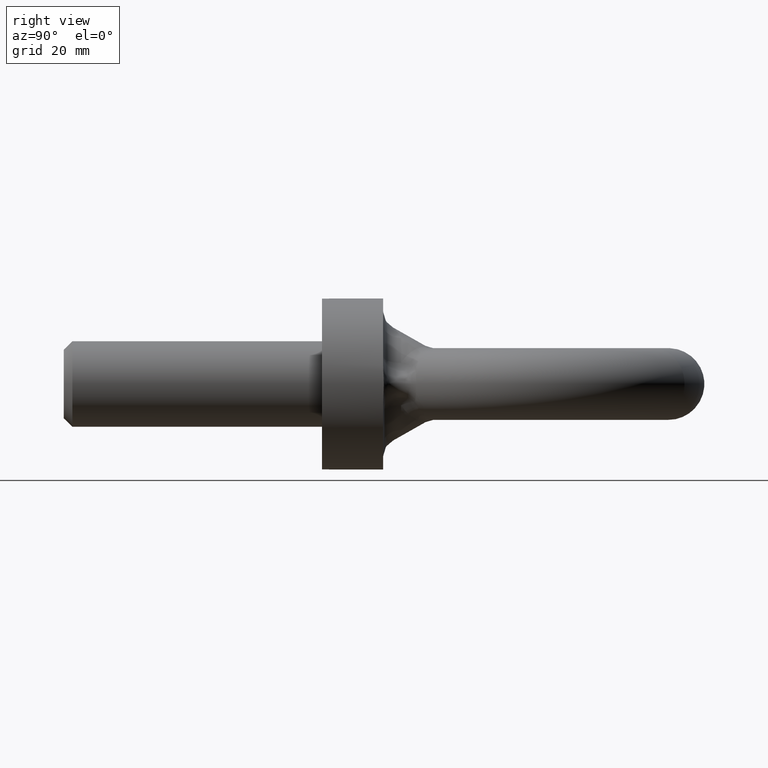
[diagram: clean part render]
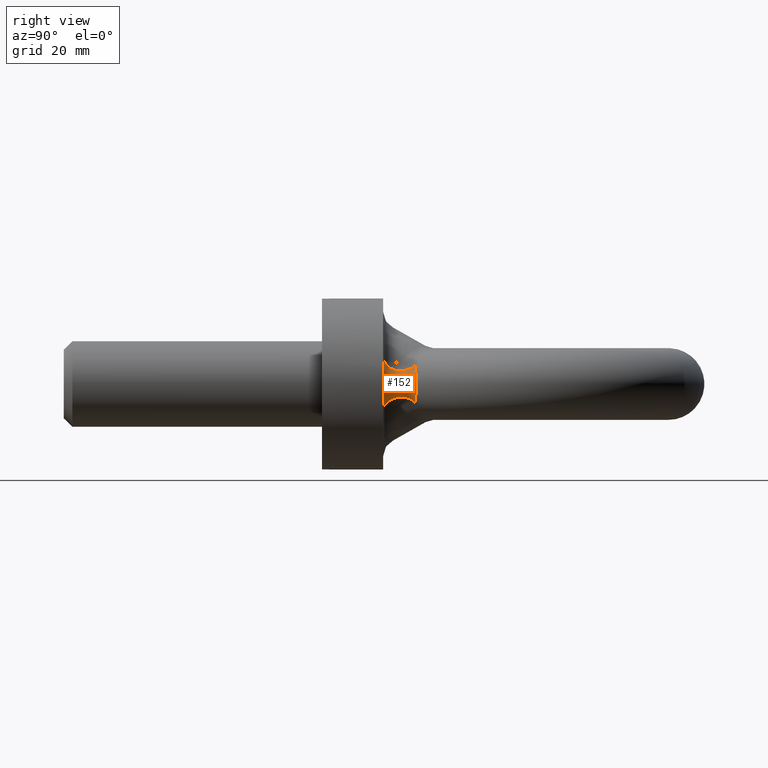
[diagram: same view with one face highlighted and labeled with its STEP entity id]
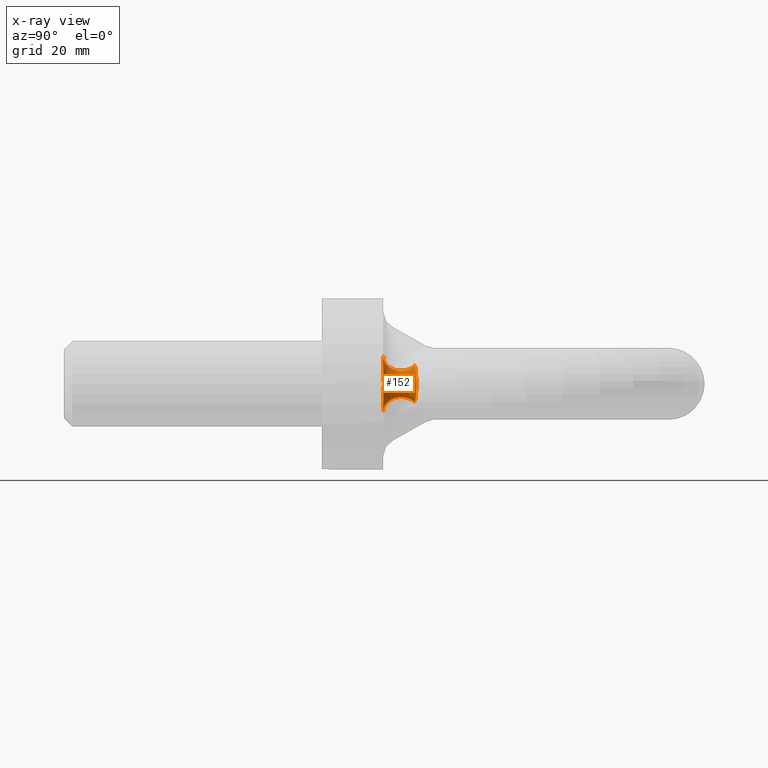
[diagram: x-ray of the same camera — body ghosted, the highlighted face saturated]
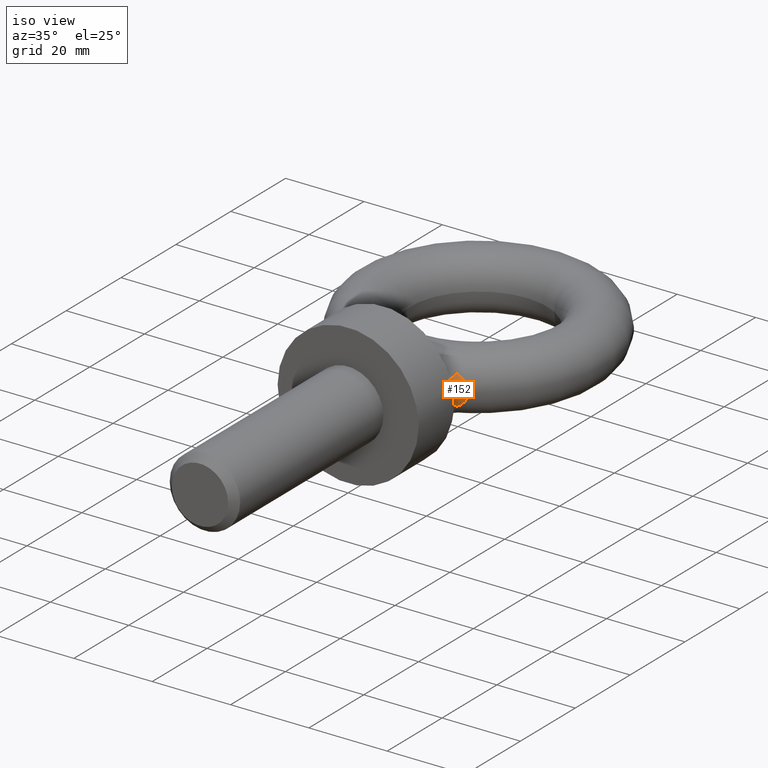
[diagram: same view with one face highlighted and labeled with its STEP entity id]
A machine part, right view. The second image highlights one B-rep face of the part: STEP entity #152.
The next image is the same camera in x-ray: the body ghosted, the highlighted face saturated — about 0% of this face is hidden behind the body in this view.
A second angle (iso view) of the same face is appended — the face is thin or edge-on in the first view.
In plain terms, the highlighted face is a freeform B-spline surface patch.
Its self-contained STEP definition (entity closure, byte-faithful):
#118=(
BOUNDED_SURFACE()
B_SPLINE_SURFACE(3,2,((#1447,#1448,#1449),(#1450,#1451,#1452),(#1453,#1454,
#1455),(#1456,#1457,#1458),(#1459,#1460,#1461),(#1462,#1463,#1464),(#1465,
#1466,#1467),(#1468,#1469,#1470),(#1471,#1472,#1473),(#1474,#1475,#1476),
(#1477,#1478,#1479),(#1480,#1481,#1482),(#1483,#1484,#1485),(#1486,#1487,
#1488),(#1489,#1490,#1491),(#1492,#1493,#1494)),.UNSPECIFIED.,.F.,.F.,.F.)
B_SPLINE_SURFACE_WITH_KNOTS((4,2,2,2,2,2,2,4),(3,3),(0.,0.25,0.375,0.5,
0.625,0.75,0.875,1.),(0.,1.),.UNSPECIFIED.)
GEOMETRIC_REPRESENTATION_ITEM()
RATIONAL_B_SPLINE_SURFACE(((1.,0.34043195445314,1.),(1.,0.323484441143992,
1.),(1.,0.30612569731487,1.),(1.,0.286030246583895,1.),(1.,0.28030609980629,
1.),(1.,0.272498008707161,1.),(1.,0.270358714154408,1.),(1.,0.270394507154253,
1.),(1.,0.272494815965418,1.),(1.,0.280402135231229,1.),(1.,0.285997468723133,
1.),(1.,0.29931760042578,1.),(1.,0.307118044610871,1.),(1.,0.323344191824849,
1.),(1.,0.331841566459812,1.),(1.,0.340431954452929,1.)))
REPRESENTATION_ITEM('')
SURFACE()
);
#152=ADVANCED_FACE('',(#199),#118,.T.);
#199=FACE_OUTER_BOUND('',#245,.T.);
#245=EDGE_LOOP('',(#423,#424,#425,#426,#427,#428));
#270=B_SPLINE_CURVE_WITH_KNOTS('',3,(#903,#904,#905,#906),.UNSPECIFIED.,
 .F.,.F.,(4,4),(0.,1.),.UNSPECIFIED.);
#291=B_SPLINE_CURVE_WITH_KNOTS('',3,(#1197,#1198,#1199,#1200,#1201,#1202),
 .UNSPECIFIED.,.F.,.F.,(4,2,4),(0.,0.5,1.),.UNSPECIFIED.);
#292=B_SPLINE_CURVE_WITH_KNOTS('',3,(#1207,#1208,#1209,#1210),
 .UNSPECIFIED.,.F.,.F.,(4,4),(0.,1.),.UNSPECIFIED.);
#301=B_SPLINE_CURVE_WITH_KNOTS('',3,(#1266,#1267,#1268,#1269,#1270,#1271,
#1272,#1273,#1274,#1275),.UNSPECIFIED.,.F.,.F.,(4,2,2,2,4),(0.,0.25,0.5,
0.75,1.),.UNSPECIFIED.);
#423=ORIENTED_EDGE('',*,*,#586,.F.);
#424=ORIENTED_EDGE('',*,*,#588,.F.);
#425=ORIENTED_EDGE('',*,*,#614,.F.);
#426=ORIENTED_EDGE('',*,*,#599,.F.);
#427=ORIENTED_EDGE('',*,*,#613,.T.);
#428=ORIENTED_EDGE('',*,*,#539,.F.);
#487=VERTEX_POINT('',#902);
#488=VERTEX_POINT('',#907);
#496=VERTEX_POINT('',#936);
#523=VERTEX_POINT('',#1196);
#525=VERTEX_POINT('',#1206);
#534=VERTEX_POINT('',#1276);
#539=EDGE_CURVE('',#487,#488,#270,.T.);
#586=EDGE_CURVE('',#523,#487,#291,.T.);
#588=EDGE_CURVE('',#525,#523,#292,.T.);
#599=EDGE_CURVE('',#496,#534,#301,.T.);
#613=EDGE_CURVE('',#496,#488,#655,.T.);
#614=EDGE_CURVE('',#534,#525,#656,.T.);
#655=CIRCLE('',#719,3.75);
#656=CIRCLE('',#721,3.75);
#719=AXIS2_PLACEMENT_3D('',#1444,#847,#848);
#721=AXIS2_PLACEMENT_3D('',#1446,#851,#852);
#847=DIRECTION('',(-0.794636552526285,0.,0.607085454766576));
#848=DIRECTION('',(0.607085454766576,0.,0.794636552526286));
#851=DIRECTION('',(0.794636552526448,0.,0.607085454766363));
#852=DIRECTION('',(0.607085454766363,0.,-0.794636552526448));
#902=CARTESIAN_POINT('',(17.5698556737493,12.8,3.91154337872134));
#903=CARTESIAN_POINT('',(17.5698556737457,12.8,3.91154337871873));
#904=CARTESIAN_POINT('',(17.0557861071786,12.8,4.59345028943166));
#905=CARTESIAN_POINT('',(16.4283797617868,12.8,5.19869464043002));
#906=CARTESIAN_POINT('',(15.7419277742021,12.8,5.72312938450662));
#907=CARTESIAN_POINT('',(15.7419277741964,12.8,5.72312938452234));
#936=CARTESIAN_POINT('',(14.2844779945792,19.4307956329052,3.81541958967108));
#1196=CARTESIAN_POINT('',(17.5698556737474,12.8,-3.91154337872978));
#1197=CARTESIAN_POINT('',(17.5698556737474,12.8,-3.91154337872978));
#1198=CARTESIAN_POINT('',(17.8577029048773,12.7999999999988,-2.61859228056736));
#1199=CARTESIAN_POINT('',(17.9993100571857,12.9234007494072,-1.31873374019245));
#1200=CARTESIAN_POINT('',(18.0006849802917,12.9243695120975,1.29983131695146));
#1201=CARTESIAN_POINT('',(17.8555354200757,12.7999999999994,2.62832818055339));
#1202=CARTESIAN_POINT('',(17.5698556737493,12.8,3.91154337872134));
#1206=CARTESIAN_POINT('',(15.7419277742021,12.8,-5.72312938450663));
#1207=CARTESIAN_POINT('',(15.7419277742021,12.8,-5.72312938450664));
#1208=CARTESIAN_POINT('',(16.4293396845441,12.8,-5.19796127982413));
#1209=CARTESIAN_POINT('',(17.0481102703644,12.8,-4.60363219186069));
#1210=CARTESIAN_POINT('',(17.5698556737417,12.8,-3.91154337872402));
#1266=CARTESIAN_POINT('',(14.2844779945792,19.4307956329052,3.81541958967108));
#1267=CARTESIAN_POINT('',(14.9878531127039,19.5101368833662,3.39786761964806));
#1268=CARTESIAN_POINT('',(15.6419934770113,19.5872969384618,2.89060629714019));
#1269=CARTESIAN_POINT('',(16.6531449364535,19.708564179036,1.6222264543058));
#1270=CARTESIAN_POINT('',(17.0019847979307,19.7515221306119,0.823914164213799));
#1271=CARTESIAN_POINT('',(17.0052706692841,19.751924602173,-0.811374755077542));
#1272=CARTESIAN_POINT('',(16.6623813887975,19.7096803341514,-1.60844368029884));
#1273=CARTESIAN_POINT('',(15.6428941812807,19.5873966144049,-2.89165140435163));
#1274=CARTESIAN_POINT('',(14.9887472313145,19.5102377406283,-3.3973368346122));
#1275=CARTESIAN_POINT('',(14.2844779945792,19.4307956329052,-3.81541958967109));
#1276=CARTESIAN_POINT('',(14.2844779945792,19.4307956329052,-3.81541958967109));
#1444=CARTESIAN_POINT('',(15.7419277742025,16.5499999999998,5.72312938450607));
#1446=CARTESIAN_POINT('',(15.7419277742021,16.55,-5.72312938450664));
#1447=CARTESIAN_POINT('',(15.741927774191,12.8,5.72312938451518));
#1448=CARTESIAN_POINT('',(9.45406627639311,12.8,-2.50728454511799));
#1449=CARTESIAN_POINT('',(14.2844779945696,19.4307956329041,3.81541958967678));
#1450=CARTESIAN_POINT('',(16.639390893095,12.8,5.03748662211735));
#1451=CARTESIAN_POINT('',(9.1671089177649,12.799999999995,-3.04073593326191));
#1452=CARTESIAN_POINT('',(15.0546411661704,19.5176706284326,3.35821952740578));
#1453=CARTESIAN_POINT('',(17.4453129114835,12.8,4.20616647647809));
#1454=CARTESIAN_POINT('',(8.39541483275621,12.8,-3.38412911892252));
#1455=CARTESIAN_POINT('',(15.7363457010186,19.5984990221359,2.80411098395614));
#1456=CARTESIAN_POINT('',(18.3183183030568,12.8,2.74694907936486));
#1457=CARTESIAN_POINT('',(7.04475449965569,12.8,-2.87963801208253));
#1458=CARTESIAN_POINT('',(16.4705461724453,19.686736757489,1.83129938642453));
#1459=CARTESIAN_POINT('',(18.5550080016005,12.8,2.21922012115872));
#1460=CARTESIAN_POINT('',(6.55807214642985,12.8,-2.51136871536406));
#1461=CARTESIAN_POINT('',(16.6686763286941,19.7108279900568,1.47948008072169));
#1462=CARTESIAN_POINT('',(18.8726151242177,12.8,1.13165030427093));
#1463=CARTESIAN_POINT('',(5.82750815966883,12.8,-1.43263321536506));
#1464=CARTESIAN_POINT('',(16.934194717584,19.7432005759831,0.754433536231405));
#1465=CARTESIAN_POINT('',(18.9566364356771,12.8,0.556494636550504));
#1466=CARTESIAN_POINT('',(5.60110721012458,12.8,-0.712287561476061));
#1467=CARTESIAN_POINT('',(17.0042227316328,19.7517962448415,0.370996424366875));
#1468=CARTESIAN_POINT('',(18.9552158070798,12.8,-0.57125057425159));
#1469=CARTESIAN_POINT('',(5.60483253797702,12.8,0.731077738702881));
#1470=CARTESIAN_POINT('',(17.0030375800846,19.7516510813246,-0.380833716167599));
#1471=CARTESIAN_POINT('',(18.8727751225117,12.8,-1.13329179815443));
#1472=CARTESIAN_POINT('',(5.8273867253224,12.8,1.43525372317602));
#1473=CARTESIAN_POINT('',(16.9343306658013,19.7432165496532,-0.755527865554708));
#1474=CARTESIAN_POINT('',(18.5510711165863,12.8,-2.23048576907059));
#1475=CARTESIAN_POINT('',(6.56662166098482,12.8,2.52123969111866));
#1476=CARTESIAN_POINT('',(16.6653828911833,19.7104270554373,-1.48699051259531));
#1477=CARTESIAN_POINT('',(18.3196592355955,12.8,-2.74379581586933));
#1478=CARTESIAN_POINT('',(7.04195192092279,12.8,2.87736716649753));
#1479=CARTESIAN_POINT('',(16.4716673071869,19.686873532567,-1.82919721066788));
#1480=CARTESIAN_POINT('',(17.7411587838527,12.8,-3.71256608928569));
#1481=CARTESIAN_POINT('',(7.95856081996398,12.8,3.22211499050609));
#1482=CARTESIAN_POINT('',(15.9851595989182,19.628399979285,-2.47504405943546));
#1483=CARTESIAN_POINT('',(17.3900668626728,12.8,-4.17023121087277));
#1484=CARTESIAN_POINT('',(8.39630297821388,12.800000000001,3.22303911787732));
#1485=CARTESIAN_POINT('',(15.6889420333205,19.5930824644167,-2.78015414079323));
#1486=CARTESIAN_POINT('',(16.6184865845406,12.8,-4.99956694113097));
#1487=CARTESIAN_POINT('',(9.06404616042381,12.799999999999,2.99287485061378));
#1488=CARTESIAN_POINT('',(15.0342150130979,19.5163576671901,-3.33304462720926));
#1489=CARTESIAN_POINT('',(16.195399270554,12.8,-5.37668679128611));
#1490=CARTESIAN_POINT('',(9.30907057799918,12.8,2.77683036146301));
#1491=CARTESIAN_POINT('',(14.673514325498,19.4746792286981,-3.5844718612276));
#1492=CARTESIAN_POINT('',(15.7419277742021,12.8,-5.72312938450664));
#1493=CARTESIAN_POINT('',(9.45406627638962,12.8,2.50728454512448));
#1494=CARTESIAN_POINT('',(14.2844779945792,19.4307956329052,-3.81541958967109));